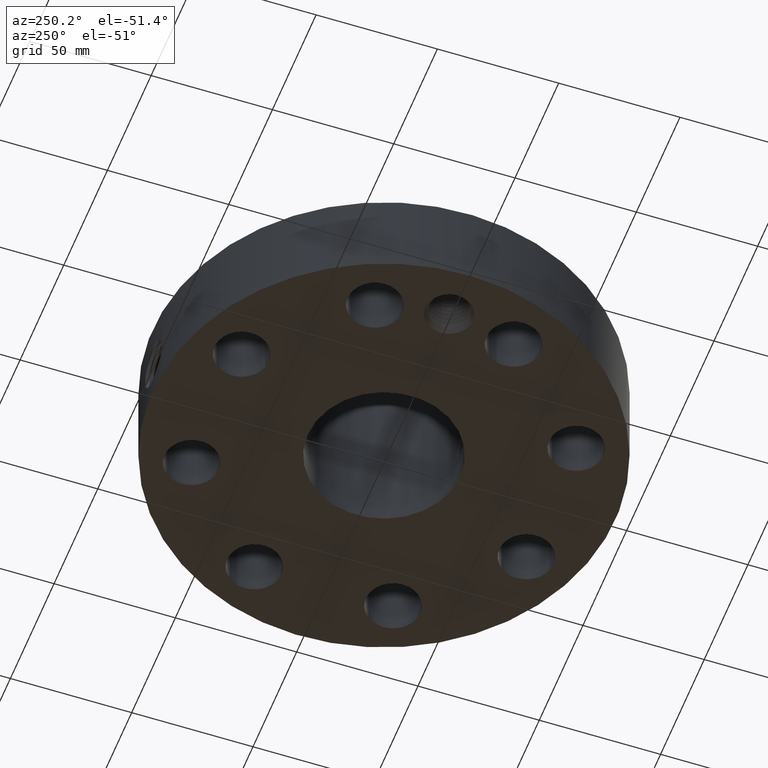
[diagram: clean part render]
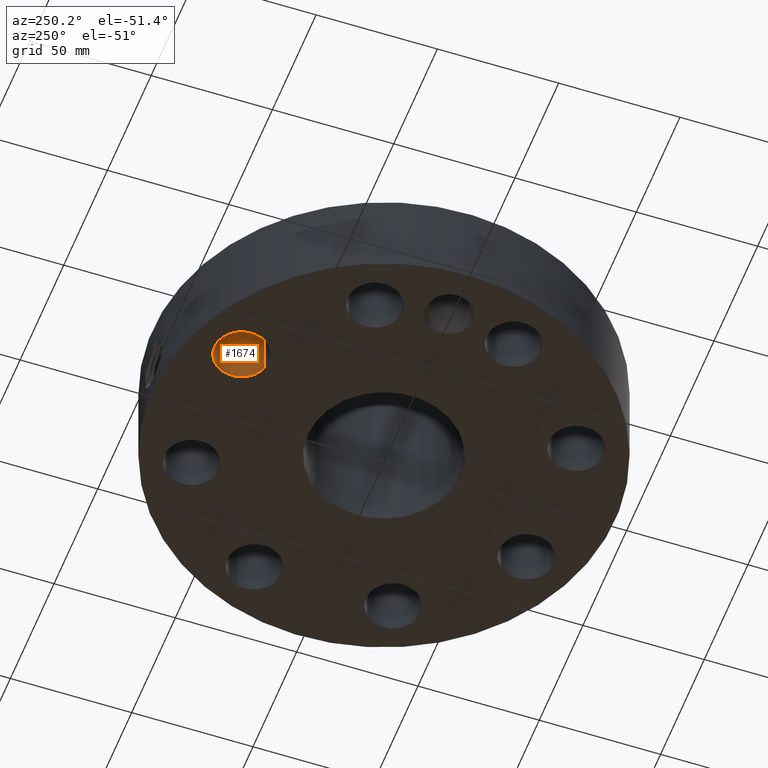
[diagram: same view with one face highlighted and labeled with its STEP entity id]
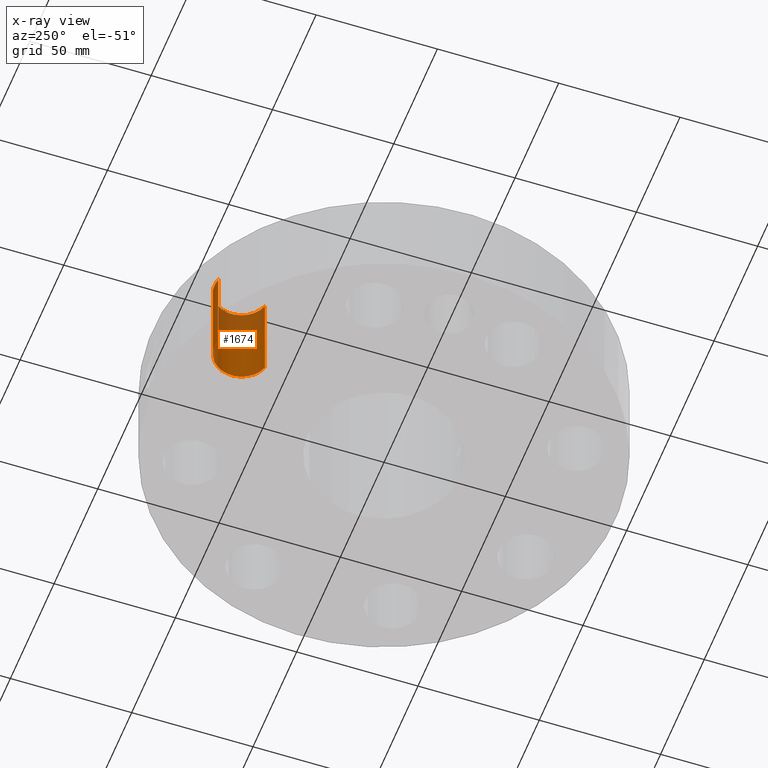
[diagram: x-ray of the same camera — body ghosted, the highlighted face saturated]
A machine part, auxiliary view. The second image highlights one B-rep face of the part: STEP entity #1674.
The next image is the same camera in x-ray: the body ghosted, the highlighted face saturated — about 27% of this face is hidden behind the body in this view.
In plain terms, the highlighted cylindrical surface (edge-blend (fillet) strip) has radius 11.176 mm, axis along (0, 0, -1).
Its self-contained STEP definition (entity closure, byte-faithful):
#357=AXIS2_PLACEMENT_3D('Circle Axis2P3D',#355,#356,$) ;
#681=AXIS2_PLACEMENT_3D('Circle Axis2P3D',#679,#680,$) ;
#1649=AXIS2_PLACEMENT_3D('Cylinder Axis2P3D',#1646,#1647,#1648) ;
#350=CARTESIAN_POINT('Vertex',(-1.00121189745,2.2940039884,0.250000000001)) ;
#352=CARTESIAN_POINT('Vertex',(-1.24896668486,3.13840766279,0.250000000001)) ;
#355=CARTESIAN_POINT('Axis2P3D Location',(-1.12508929116,2.71620582559,0.250000000001)) ;
#679=CARTESIAN_POINT('Axis2P3D Location',(-1.12508929116,2.71620582559,1.75000000001)) ;
#683=CARTESIAN_POINT('Vertex',(-1.24896668486,3.13840766279,1.75000000001)) ;
#685=CARTESIAN_POINT('Vertex',(-1.00121189745,2.2940039884,1.75000000001)) ;
#1646=CARTESIAN_POINT('Axis2P3D Location',(-1.12508929116,2.71620582559,1.74606299213)) ;
#1651=CARTESIAN_POINT('Line Origine',(-1.00121189745,2.2940039884,1.)) ;
#1656=CARTESIAN_POINT('Line Origine',(-1.24896668486,3.13840766279,1.)) ;
#356=DIRECTION('Axis2P3D Direction',(0.,0.,-0.0393700787402)) ;
#680=DIRECTION('Axis2P3D Direction',(0.,0.,-0.0393700787402)) ;
#1647=DIRECTION('Axis2P3D Direction',(0.,0.,-0.0393700787402)) ;
#1648=DIRECTION('Axis2P3D XDirection',(-0.0110842335096,0.0377775444876,0.)) ;
#1652=DIRECTION('Vector Direction',(0.,0.,-0.0393700787402)) ;
#1657=DIRECTION('Vector Direction',(0.,0.,-0.0393700787402)) ;
#1653=VECTOR('Line Direction',#1652,0.0393700787402) ;
#1658=VECTOR('Line Direction',#1657,0.0393700787402) ;
#1669=ORIENTED_EDGE('',*,*,#1660,.F.) ;
#1670=ORIENTED_EDGE('',*,*,#359,.T.) ;
#1671=ORIENTED_EDGE('',*,*,#1655,.T.) ;
#1672=ORIENTED_EDGE('',*,*,#687,.F.) ;
#1674=ADVANCED_FACE('PartBody',(#1673),#1650,.F.) ;
#358=CIRCLE('generated circle',#357,0.440000000002) ;
#682=CIRCLE('generated circle',#681,0.440000000002) ;
#1650=CYLINDRICAL_SURFACE('generated cylinder',#1649,0.440000000002) ;
#359=EDGE_CURVE('',#353,#351,#358,.T.) ;
#687=EDGE_CURVE('',#684,#686,#682,.T.) ;
#1655=EDGE_CURVE('',#351,#686,#1654,.F.) ;
#1660=EDGE_CURVE('',#353,#684,#1659,.F.) ;
#1668=EDGE_LOOP('',(#1669,#1670,#1671,#1672)) ;
#1673=FACE_OUTER_BOUND('',#1668,.T.) ;
#1654=LINE('Line',#1651,#1653) ;
#1659=LINE('Line',#1656,#1658) ;
#351=VERTEX_POINT('',#350) ;
#353=VERTEX_POINT('',#352) ;
#684=VERTEX_POINT('',#683) ;
#686=VERTEX_POINT('',#685) ;